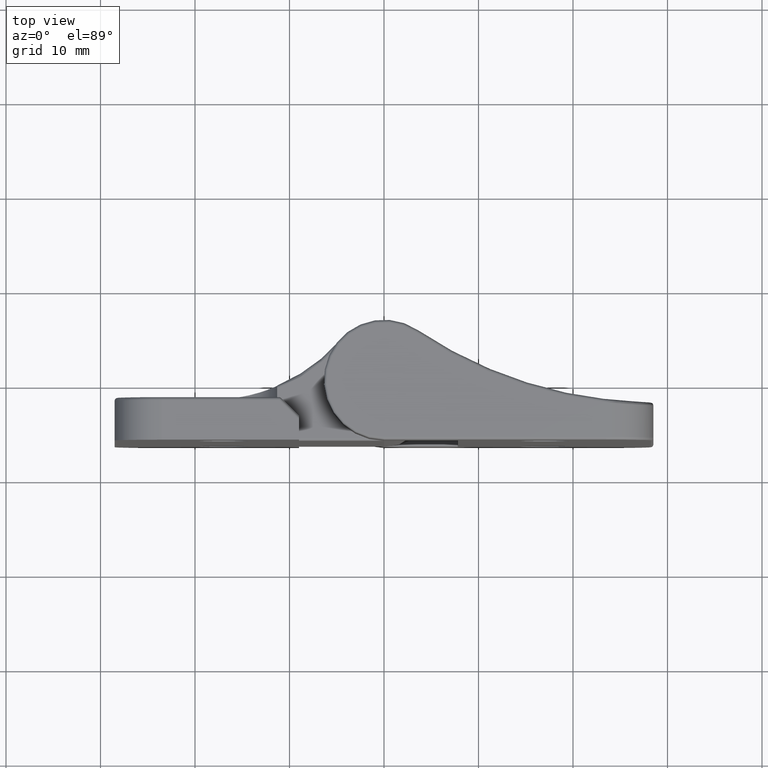
[diagram: clean part render]
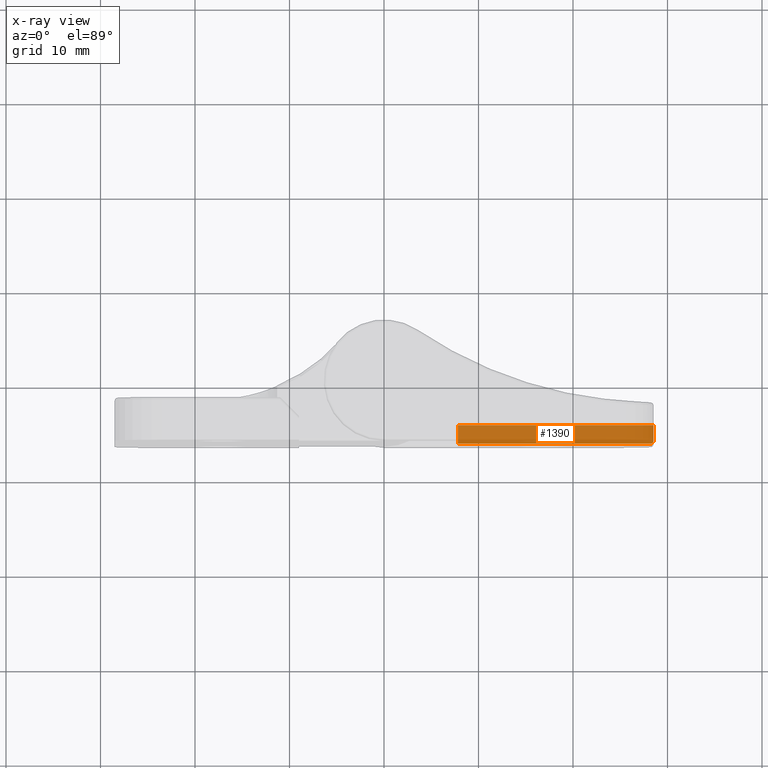
[diagram: x-ray — body ghosted, one internal face saturated and labeled with its STEP entity id]
A machine part, top view, then the same camera in x-ray: the body is ghosted and one INTERNAL B-rep face — a face not visible from any outside direction — is saturated and labeled: STEP entity #1390.
In plain terms, the highlighted planar face has unit normal (0, -0.545, -0.8384).
Its self-contained STEP definition (entity closure, byte-faithful):
#89=PLANE('',#1565);
#186=LINE('',#2555,#281);
#194=LINE('',#2604,#289);
#197=LINE('',#2609,#292);
#198=LINE('',#2611,#293);
#281=VECTOR('',#1959,20.4);
#289=VECTOR('',#1997,2.38537208837531);
#292=VECTOR('',#2002,2.02756627511901);
#293=VECTOR('',#2005,20.7);
#298=ELLIPSE('',#1518,0.357805813256296,0.3);
#416=FACE_OUTER_BOUND('',#513,.T.);
#513=EDGE_LOOP('',(#1301,#1302,#1303,#1304,#1305));
#685=VERTEX_POINT('',#2419);
#686=VERTEX_POINT('',#2420);
#712=VERTEX_POINT('',#2554);
#719=VERTEX_POINT('',#2603);
#720=VERTEX_POINT('',#2607);
#859=EDGE_CURVE('',#685,#686,#298,.T.);
#896=EDGE_CURVE('',#686,#712,#186,.T.);
#911=EDGE_CURVE('',#712,#719,#194,.T.);
#914=EDGE_CURVE('',#720,#685,#197,.T.);
#915=EDGE_CURVE('',#719,#720,#198,.T.);
#1301=ORIENTED_EDGE('',*,*,#859,.F.);
#1302=ORIENTED_EDGE('',*,*,#914,.F.);
#1303=ORIENTED_EDGE('',*,*,#915,.F.);
#1304=ORIENTED_EDGE('',*,*,#911,.F.);
#1305=ORIENTED_EDGE('',*,*,#896,.F.);
#1390=ADVANCED_FACE('',(#416),#89,.F.);
#1518=AXIS2_PLACEMENT_3D('',#2421,#1885,#1886);
#1565=AXIS2_PLACEMENT_3D('',#2612,#2006,#2007);
#1885=DIRECTION('center_axis',(0.,-0.544988350595412,0.838443616300638));
#1886=DIRECTION('ref_axis',(0.,-0.838443616300638,-0.544988350595412));
#1959=DIRECTION('',(1.,4.67462326157961E-16,3.03850512002673E-16));
#1997=DIRECTION('',(-3.90912087209217E-16,0.838443616300638,0.544988350595412));
#2002=DIRECTION('',(0.,-0.838443616300638,-0.544988350595412));
#2005=DIRECTION('',(-1.,0.,0.));
#2006=DIRECTION('center_axis',(0.,-0.544988350595412,0.838443616300638));
#2007=DIRECTION('ref_axis',(0.,-0.838443616300639,-0.544988350595412));
#2419=CARTESIAN_POINT('',(-28.5,-6.05000000000001,0.433537208837541));
#2420=CARTESIAN_POINT('',(-28.2,-6.35000000000001,0.238537208837539));
#2421=CARTESIAN_POINT('Origin',(-28.2,-6.05000000000001,0.433537208837535));
#2554=CARTESIAN_POINT('',(-7.8,-6.35000000000001,0.238537208837539));
#2555=CARTESIAN_POINT('',(-28.5,-6.35000000000001,0.238537208837539));
#2603=CARTESIAN_POINT('',(-7.8,-4.35000000000001,1.53853720883753));
#2604=CARTESIAN_POINT('',(-7.79999999999999,-9.55124751695761,-1.84227367718489));
#2607=CARTESIAN_POINT('',(-28.5,-4.35000000000001,1.53853720883753));
#2609=CARTESIAN_POINT('',(-28.5,-3.99852343962897,1.76699697307871));
#2611=CARTESIAN_POINT('',(-28.5,-4.35000000000001,1.53853720883753));
#2612=CARTESIAN_POINT('Origin',(-28.5,-4.35000000000001,1.53853720883753));